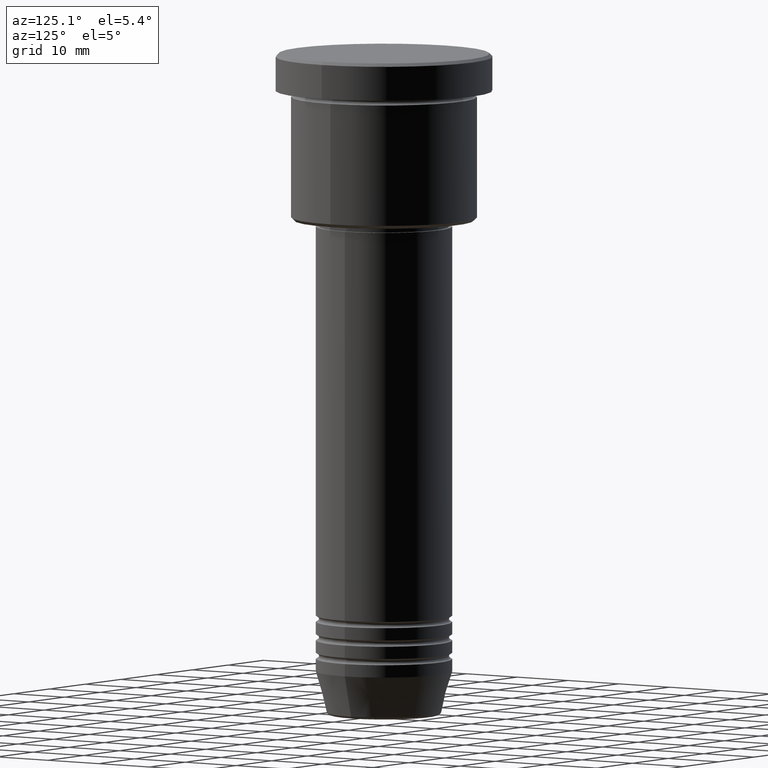
[diagram: clean part render]
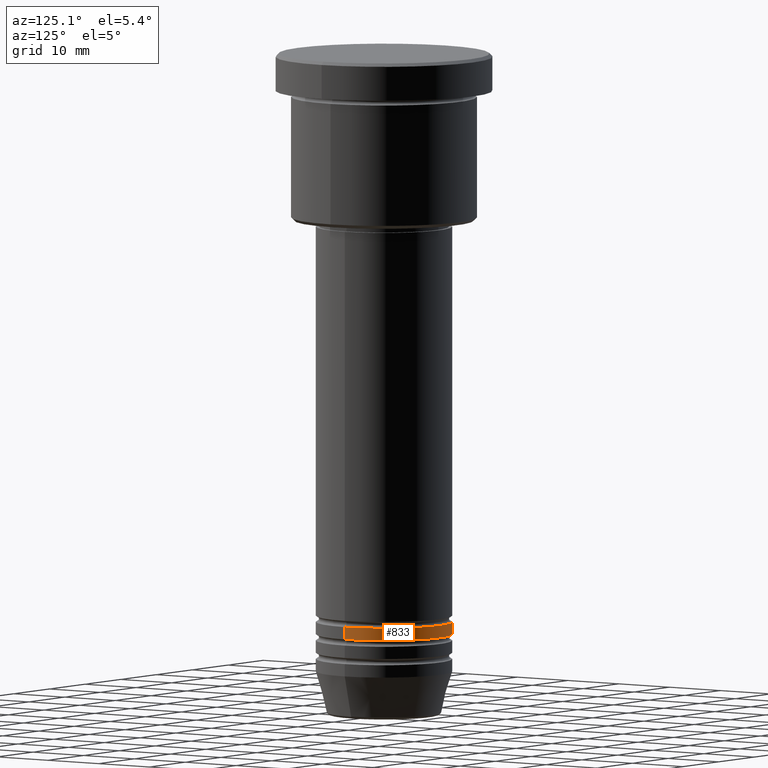
[diagram: same view with one face highlighted and labeled with its STEP entity id]
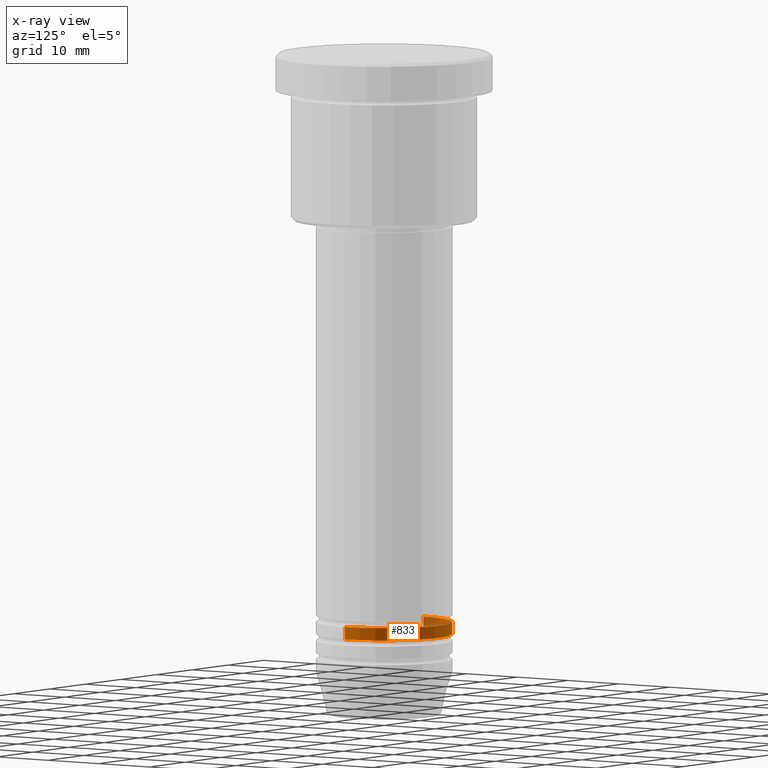
[diagram: x-ray of the same camera — body ghosted, the highlighted face saturated]
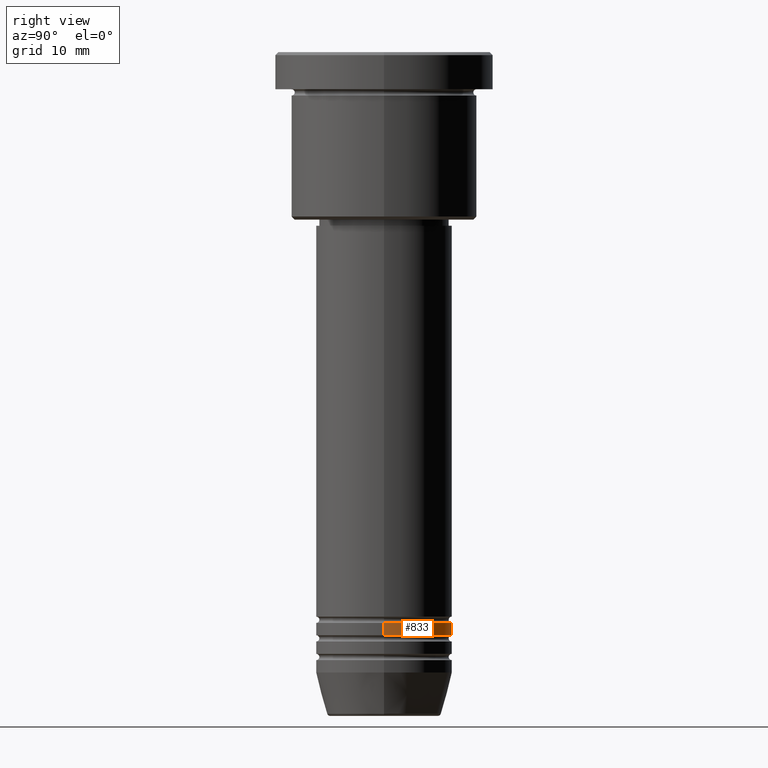
[diagram: same view with one face highlighted and labeled with its STEP entity id]
A machine part, auxiliary view. The second image highlights one B-rep face of the part: STEP entity #833.
The next image is the same camera in x-ray: the body ghosted, the highlighted face saturated — about 9% of this face is hidden behind the body in this view.
A second angle (right view) of the same face is appended — the face is thin or edge-on in the first view.
In plain terms, the highlighted cylindrical surface (partial cylindrical patch) has radius 11 mm, axis along (-0, -0, 1).
Its self-contained STEP definition (entity closure, byte-faithful):
#1 = DIRECTION ( 'NONE',  ( -0.000000000000000000, -0.000000000000000000, 1.000000000000000000 ) ) ;
#18 = VERTEX_POINT ( 'NONE', #367 ) ;
#57 = VERTEX_POINT ( 'NONE', #533 ) ;
#90 = CARTESIAN_POINT ( 'NONE',  ( 0.000000000000000000, 0.000000000000000000, -93.99999999999997158 ) ) ;
#99 = DIRECTION ( 'NONE',  ( 1.000000000000000000, 0.000000000000000000, 0.000000000000000000 ) ) ;
#106 = ORIENTED_EDGE ( 'NONE', *, *, #173, .T. ) ;
#142 = CARTESIAN_POINT ( 'NONE',  ( -11.00000000000000000, 1.347111479062088405E-15, 0.000000000000000000 ) ) ;
#173 = EDGE_CURVE ( 'NONE', #57, #774, #953, .T. ) ;
#187 = FACE_OUTER_BOUND ( 'NONE', #753, .T. ) ;
#189 = VECTOR ( 'NONE', #702, 1000.000000000000000 ) ;
#194 = AXIS2_PLACEMENT_3D ( 'NONE', #90, #1, #99 ) ;
#224 = CARTESIAN_POINT ( 'NONE',  ( 0.000000000000000000, 0.000000000000000000, 0.000000000000000000 ) ) ;
#242 = ORIENTED_EDGE ( 'NONE', *, *, #954, .F. ) ;
#246 = CARTESIAN_POINT ( 'NONE',  ( 11.00000000000000000, 0.000000000000000000, 0.000000000000000000 ) ) ;
#254 = CARTESIAN_POINT ( 'NONE',  ( 11.00000000000000000, 0.000000000000000000, -93.99999999999997158 ) ) ;
#317 = DIRECTION ( 'NONE',  ( 1.000000000000000000, 0.000000000000000000, 0.000000000000000000 ) ) ;
#355 = DIRECTION ( 'NONE',  ( -0.000000000000000000, -0.000000000000000000, 1.000000000000000000 ) ) ;
#364 = EDGE_CURVE ( 'NONE', #18, #774, #439, .T. ) ;
#367 = CARTESIAN_POINT ( 'NONE',  ( 11.00000000000000000, 0.000000000000000000, -91.99999999999998579 ) ) ;
#439 = CIRCLE ( 'NONE', #1064, 11.00000000000000000 ) ;
#458 = CIRCLE ( 'NONE', #194, 11.00000000000000000 ) ;
#465 = CARTESIAN_POINT ( 'NONE',  ( 0.000000000000000000, 0.000000000000000000, -91.99999999999998579 ) ) ;
#533 = CARTESIAN_POINT ( 'NONE',  ( -11.00000000000000000, 1.347111479062088405E-15, -93.99999999999997158 ) ) ;
#548 = ORIENTED_EDGE ( 'NONE', *, *, #364, .F. ) ;
#575 = CARTESIAN_POINT ( 'NONE',  ( -11.00000000000000000, 1.347111479062088405E-15, -91.99999999999998579 ) ) ;
#592 = ORIENTED_EDGE ( 'NONE', *, *, #770, .T. ) ;
#649 = DIRECTION ( 'NONE',  ( 1.000000000000000000, 0.000000000000000000, 0.000000000000000000 ) ) ;
#650 = VERTEX_POINT ( 'NONE', #254 ) ;
#702 = DIRECTION ( 'NONE',  ( -0.000000000000000000, -0.000000000000000000, 1.000000000000000000 ) ) ;
#753 = EDGE_LOOP ( 'NONE', ( #592, #106, #548, #242 ) ) ;
#770 = EDGE_CURVE ( 'NONE', #650, #57, #458, .T. ) ;
#774 = VERTEX_POINT ( 'NONE', #575 ) ;
#789 = CYLINDRICAL_SURFACE ( 'NONE', #1028, 11.00000000000000000 ) ;
#833 = ADVANCED_FACE ( 'NONE', ( #187 ), #789, .T. ) ;
#867 = DIRECTION ( 'NONE',  ( -0.000000000000000000, -0.000000000000000000, 1.000000000000000000 ) ) ;
#911 = VECTOR ( 'NONE', #867, 1000.000000000000000 ) ;
#953 = LINE ( 'NONE', #142, #189 ) ;
#954 = EDGE_CURVE ( 'NONE', #650, #18, #1156, .T. ) ;
#1028 = AXIS2_PLACEMENT_3D ( 'NONE', #224, #1139, #317 ) ;
#1064 = AXIS2_PLACEMENT_3D ( 'NONE', #465, #355, #649 ) ;
#1139 = DIRECTION ( 'NONE',  ( -0.000000000000000000, -0.000000000000000000, 1.000000000000000000 ) ) ;
#1156 = LINE ( 'NONE', #246, #911 ) ;